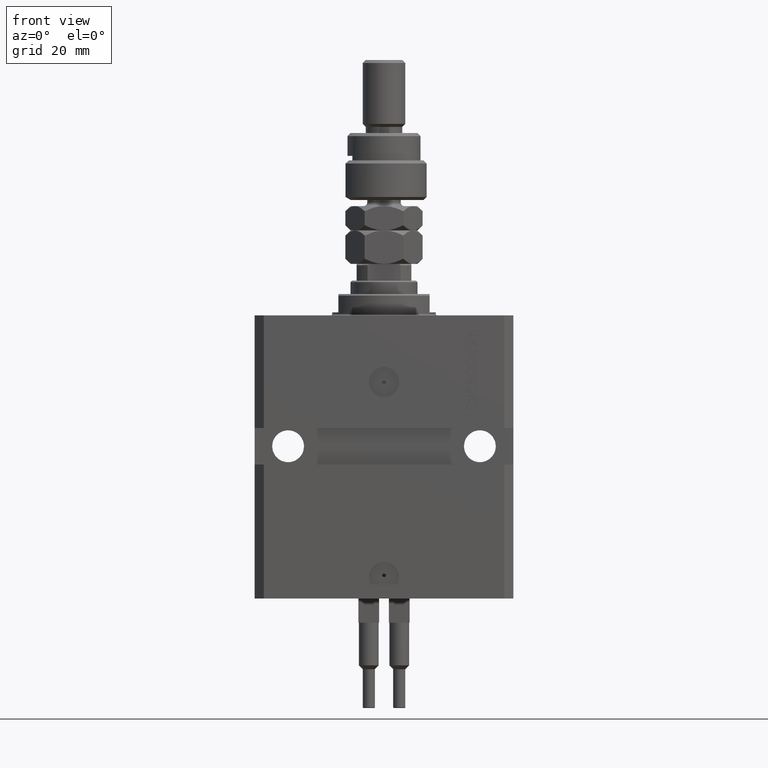
[diagram: clean part render]
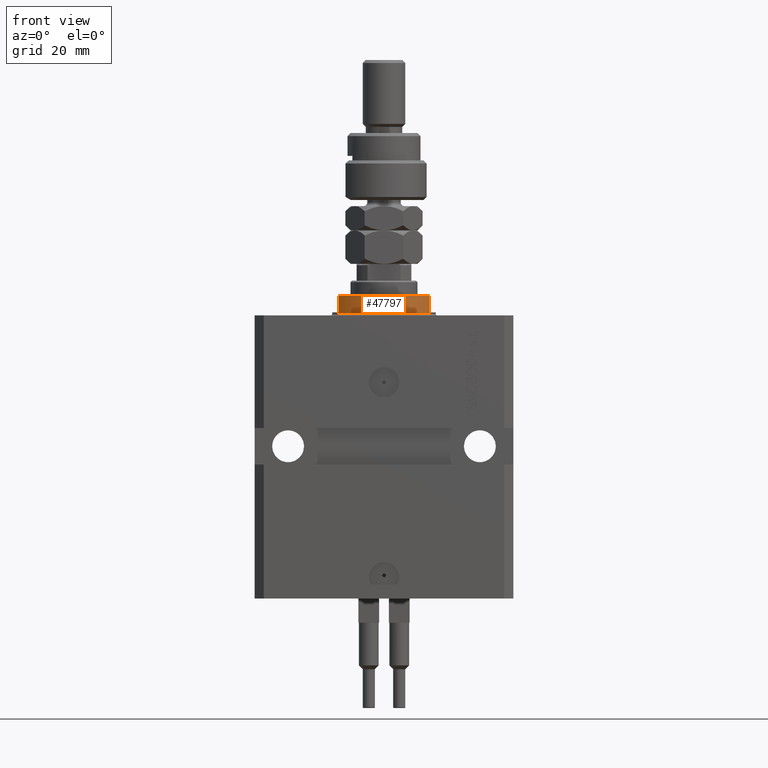
[diagram: same view with one face highlighted and labeled with its STEP entity id]
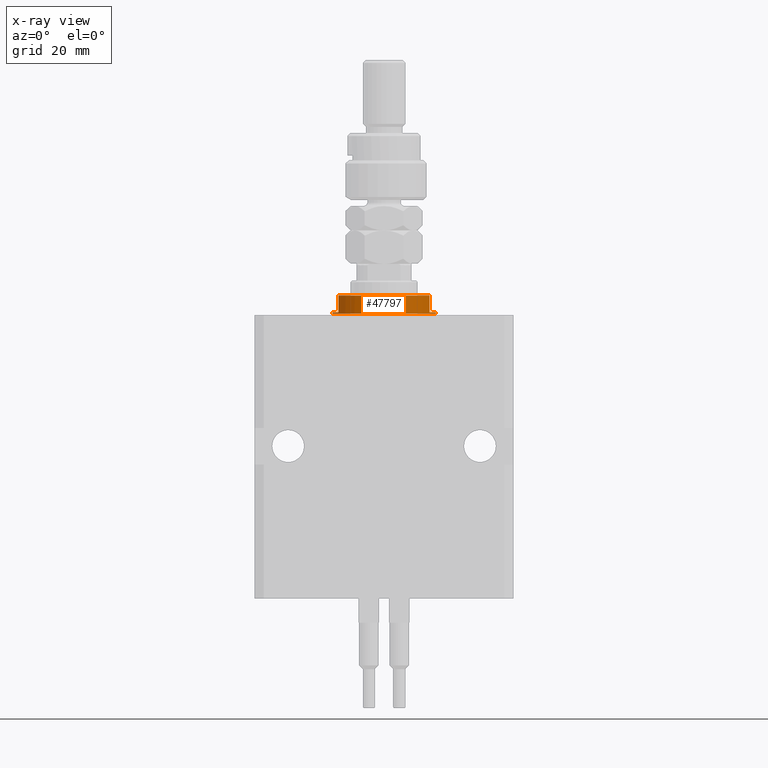
[diagram: x-ray of the same camera — body ghosted, the highlighted face saturated]
A machine part, front view. The second image highlights one B-rep face of the part: STEP entity #47797.
The next image is the same camera in x-ray: the body ghosted, the highlighted face saturated — about 0% of this face is hidden behind the body in this view.
In plain terms, the highlighted cylindrical surface (partial cylindrical patch) has radius 17 mm, axis along (0, 0, -1).
Its self-contained STEP definition (entity closure, byte-faithful):
#49 = LINE ( 'NONE', #4219, #35892 ) ;
#765 = DIRECTION ( 'NONE',  ( 0.000000000000000000, 0.000000000000000000, -1.000000000000000000 ) ) ;
#806 = CARTESIAN_POINT ( 'NONE',  ( 0.000000000000000000, 0.000000000000000000, -1.000000000000000000 ) ) ;
#1265 = VERTEX_POINT ( 'NONE', #7299 ) ;
#2412 = CIRCLE ( 'NONE', #26632, 17.00000000000000000 ) ;
#2743 = DIRECTION ( 'NONE',  ( -0.000000000000000000, -0.000000000000000000, -1.000000000000000000 ) ) ;
#2882 = CARTESIAN_POINT ( 'NONE',  ( 15.00000000000000000, -8.000000000000001776, -6.500000000000000000 ) ) ;
#3728 = LINE ( 'NONE', #26758, #39675 ) ;
#4219 = CARTESIAN_POINT ( 'NONE',  ( -17.00000000000000000, 2.081899558550500280E-15, -7.000000000000000000 ) ) ;
#4505 = EDGE_CURVE ( 'NONE', #22800, #10911, #3728, .T. ) ;
#6506 = AXIS2_PLACEMENT_3D ( 'NONE', #39192, #44144, #20321 ) ;
#6965 = EDGE_CURVE ( 'NONE', #1265, #23910, #11160, .T. ) ;
#7299 = CARTESIAN_POINT ( 'NONE',  ( 17.00000000000000000, 0.000000000000000000, -1.000000000000000000 ) ) ;
#8686 = DIRECTION ( 'NONE',  ( 0.000000000000000000, 0.000000000000000000, 1.000000000000000000 ) ) ;
#10012 = AXIS2_PLACEMENT_3D ( 'NONE', #44536, #8686, #24635 ) ;
#10375 = DIRECTION ( 'NONE',  ( -0.000000000000000000, -0.000000000000000000, 1.000000000000000000 ) ) ;
#10911 = VERTEX_POINT ( 'NONE', #2882 ) ;
#10954 = VERTEX_POINT ( 'NONE', #47868 ) ;
#11160 = LINE ( 'NONE', #30240, #33915 ) ;
#12577 = DIRECTION ( 'NONE',  ( 0.000000000000000000, 0.000000000000000000, -1.000000000000000000 ) ) ;
#13536 = EDGE_CURVE ( 'NONE', #1265, #22800, #2412, .T. ) ;
#14457 = EDGE_CURVE ( 'NONE', #42518, #10954, #49, .T. ) ;
#14764 = CARTESIAN_POINT ( 'NONE',  ( 17.00000000000000000, 0.000000000000000000, -0.4999999999999995559 ) ) ;
#15961 = CARTESIAN_POINT ( 'NONE',  ( 0.000000000000000000, 0.000000000000000000, -1.000000000000000000 ) ) ;
#16254 = DIRECTION ( 'NONE',  ( -0.000000000000000000, -0.000000000000000000, 1.000000000000000000 ) ) ;
#19681 = DIRECTION ( 'NONE',  ( 0.000000000000000000, 0.000000000000000000, -1.000000000000000000 ) ) ;
#20321 = DIRECTION ( 'NONE',  ( 1.000000000000000000, 0.000000000000000000, 0.000000000000000000 ) ) ;
#22595 = CARTESIAN_POINT ( 'NONE',  ( -17.00000000000000000, 2.081899558550500280E-15, -1.000000000000000000 ) ) ;
#22663 = AXIS2_PLACEMENT_3D ( 'NONE', #49843, #2743, #30702 ) ;
#22800 = VERTEX_POINT ( 'NONE', #24448 ) ;
#23875 = EDGE_LOOP ( 'NONE', ( #39821, #32524, #32423, #46066, #49598, #40514, #50170, #39133 ) ) ;
#23910 = VERTEX_POINT ( 'NONE', #14764 ) ;
#24448 = CARTESIAN_POINT ( 'NONE',  ( 14.99999999999999645, -8.000000000000003553, -1.000000000000000000 ) ) ;
#24635 = DIRECTION ( 'NONE',  ( -1.000000000000000000, 0.000000000000000000, 0.000000000000000000 ) ) ;
#24657 = EDGE_CURVE ( 'NONE', #37410, #40620, #46649, .T. ) ;
#25043 = EDGE_CURVE ( 'NONE', #37410, #42518, #44296, .T. ) ;
#26632 = AXIS2_PLACEMENT_3D ( 'NONE', #806, #12577, #48681 ) ;
#26758 = CARTESIAN_POINT ( 'NONE',  ( 15.00000000000000000, -8.000000000000001776, -7.000000000000000000 ) ) ;
#28038 = CARTESIAN_POINT ( 'NONE',  ( -14.99999999999999645, -8.000000000000003553, -1.000000000000000000 ) ) ;
#30240 = CARTESIAN_POINT ( 'NONE',  ( 17.00000000000000000, 0.000000000000000000, -7.000000000000000000 ) ) ;
#30702 = DIRECTION ( 'NONE',  ( 1.000000000000000000, 0.000000000000000000, 0.000000000000000000 ) ) ;
#30783 = EDGE_CURVE ( 'NONE', #23910, #10954, #41848, .T. ) ;
#31693 = CIRCLE ( 'NONE', #10012, 17.00000000000000000 ) ;
#32423 = ORIENTED_EDGE ( 'NONE', *, *, #24657, .T. ) ;
#32524 = ORIENTED_EDGE ( 'NONE', *, *, #25043, .F. ) ;
#33915 = VECTOR ( 'NONE', #10375, 1000.000000000000000 ) ;
#34859 = CARTESIAN_POINT ( 'NONE',  ( -15.00000000000000000, -8.000000000000001776, -7.000000000000000000 ) ) ;
#35764 = CYLINDRICAL_SURFACE ( 'NONE', #6506, 17.00000000000000000 ) ;
#35892 = VECTOR ( 'NONE', #16254, 1000.000000000000000 ) ;
#37410 = VERTEX_POINT ( 'NONE', #28038 ) ;
#39133 = ORIENTED_EDGE ( 'NONE', *, *, #30783, .T. ) ;
#39192 = CARTESIAN_POINT ( 'NONE',  ( 0.000000000000000000, 0.000000000000000000, -7.000000000000000000 ) ) ;
#39675 = VECTOR ( 'NONE', #19681, 1000.000000000000000 ) ;
#39821 = ORIENTED_EDGE ( 'NONE', *, *, #14457, .F. ) ;
#40514 = ORIENTED_EDGE ( 'NONE', *, *, #13536, .F. ) ;
#40620 = VERTEX_POINT ( 'NONE', #51715 ) ;
#40907 = AXIS2_PLACEMENT_3D ( 'NONE', #15961, #765, #48388 ) ;
#41848 = CIRCLE ( 'NONE', #22663, 17.00000000000000000 ) ;
#42518 = VERTEX_POINT ( 'NONE', #22595 ) ;
#44144 = DIRECTION ( 'NONE',  ( -0.000000000000000000, -0.000000000000000000, 1.000000000000000000 ) ) ;
#44296 = CIRCLE ( 'NONE', #40907, 17.00000000000000000 ) ;
#44536 = CARTESIAN_POINT ( 'NONE',  ( 0.000000000000000000, 0.000000000000000000, -6.500000000000000000 ) ) ;
#46066 = ORIENTED_EDGE ( 'NONE', *, *, #51269, .T. ) ;
#46649 = LINE ( 'NONE', #34859, #48482 ) ;
#47797 = ADVANCED_FACE ( 'NONE', ( #47828 ), #35764, .T. ) ;
#47828 = FACE_OUTER_BOUND ( 'NONE', #23875, .T. ) ;
#47868 = CARTESIAN_POINT ( 'NONE',  ( -17.00000000000000000, 2.081899558550500280E-15, -0.4999999999999995559 ) ) ;
#48388 = DIRECTION ( 'NONE',  ( -1.000000000000000000, 0.000000000000000000, 0.000000000000000000 ) ) ;
#48482 = VECTOR ( 'NONE', #50844, 1000.000000000000000 ) ;
#48681 = DIRECTION ( 'NONE',  ( -1.000000000000000000, 0.000000000000000000, 0.000000000000000000 ) ) ;
#49598 = ORIENTED_EDGE ( 'NONE', *, *, #4505, .F. ) ;
#49843 = CARTESIAN_POINT ( 'NONE',  ( 0.000000000000000000, 0.000000000000000000, -0.4999999999999995559 ) ) ;
#50170 = ORIENTED_EDGE ( 'NONE', *, *, #6965, .T. ) ;
#50844 = DIRECTION ( 'NONE',  ( 0.000000000000000000, 0.000000000000000000, -1.000000000000000000 ) ) ;
#51269 = EDGE_CURVE ( 'NONE', #40620, #10911, #31693, .T. ) ;
#51715 = CARTESIAN_POINT ( 'NONE',  ( -15.00000000000000000, -8.000000000000001776, -6.500000000000000888 ) ) ;